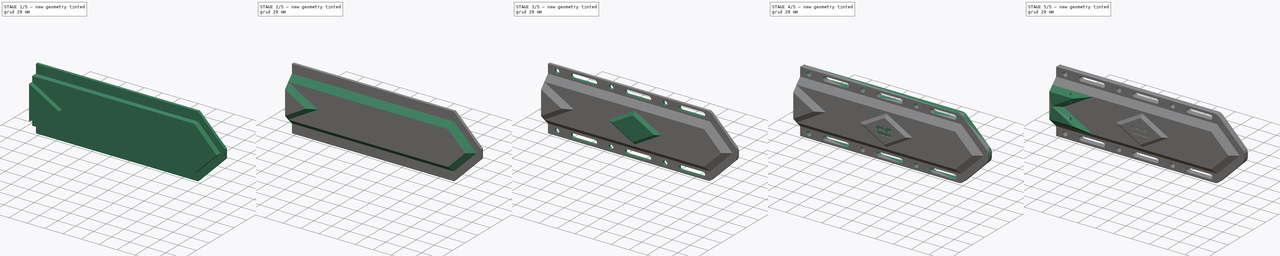
[diagram: build sequence overview — one tinted view per stage of 5, left to right]
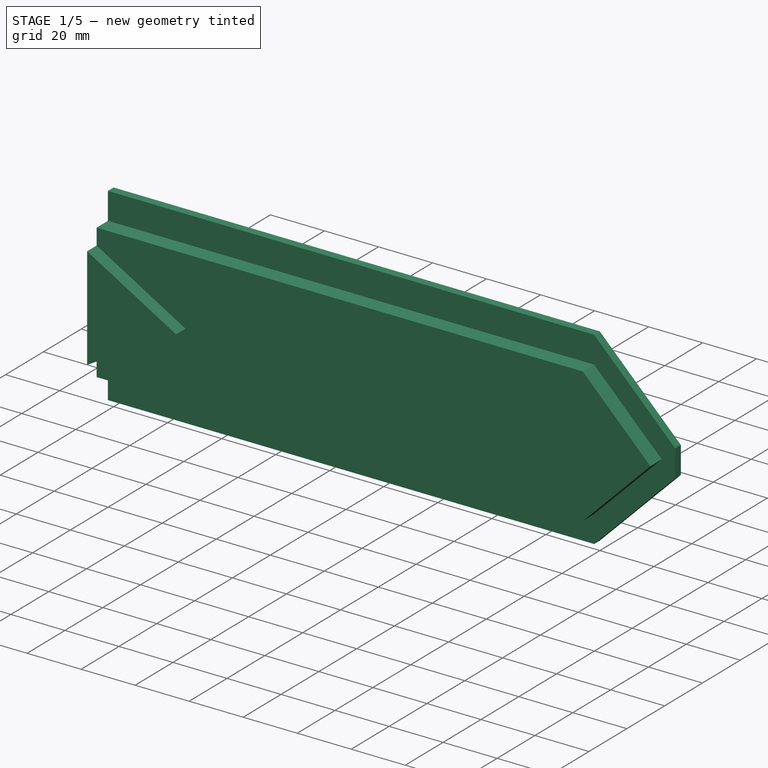
[diagram: stage 1 of 5 — iso view after this stage's code; geometry added in this stage tinted green]
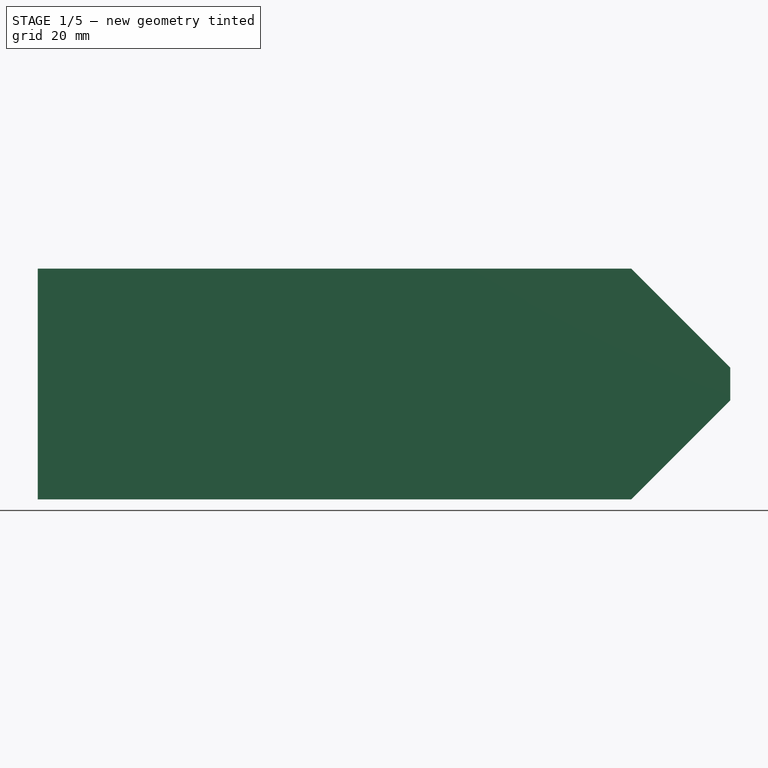
[diagram: stage 1 of 5 — front view after this stage's code; geometry added in this stage tinted green]
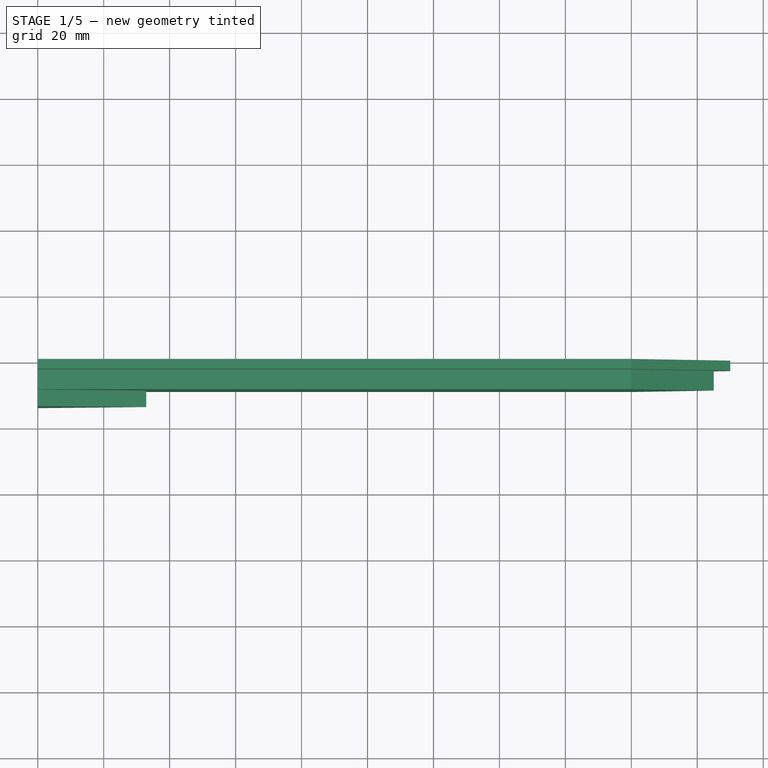
[diagram: stage 1 of 5 — top view after this stage's code; geometry added in this stage tinted green]
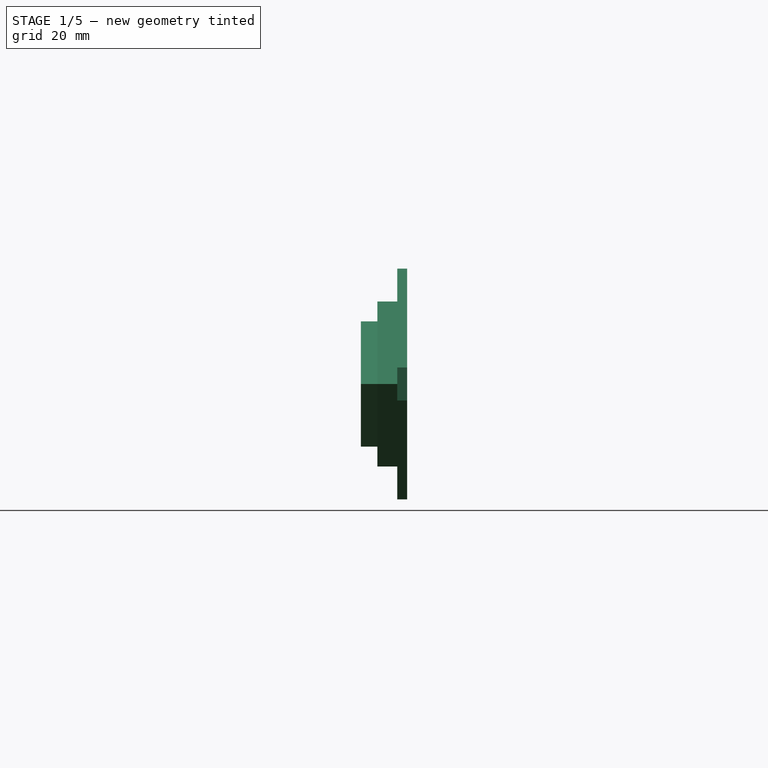
[diagram: stage 1 of 5 — right view after this stage's code; geometry added in this stage tinted green]
FCSTD DOCUMENT  (FreeCAD 1.0R39109 (Git))
Label: Рома кинжал
License: All rights reserved
LicenseURL: https://en.wikipedia.org/wiki/All_rights_reserved
objects: Sketcher::SketchObject×10, PartDesign::Pocket×7, PartDesign::Pad×5, PartDesign::Chamfer×4, Part::Part2DObjectPython×2, PartDesign::Fillet×1, PartDesign::Mirrored×1, PartDesign::Plane×1, PartDesign::Body×1
note: 77 computed .brp shape members not serialized (recipe doc carries the construction recipe); baked Part::Feature solids carry a one-line shape summary decoded from their .brp

FEATURE [Sketcher::SketchObject] Sketch
  ArcFitTolerance = 1e-06
  AttachmentSupport = -> [XZ_Plane]
  FullyConstrained = true
  MakeInternals = false
  MapMode = 5
  Placement = pos=(0,0,0) rot=(1,0,0;1.5708rad)
  sketch-geometry (6):
    g0: LineSegment StartX=0 StartY=35 StartZ=0 EndX=0 EndY=-35 EndZ=0
    g1: LineSegment StartX=0 StartY=-35 StartZ=0 EndX=180 EndY=-35 EndZ=0
    g2: LineSegment StartX=210 StartY=-5 StartZ=0 EndX=210 EndY=5 EndZ=0
    g3: LineSegment StartX=180 StartY=35 StartZ=0 EndX=0 EndY=35 EndZ=0
    g4: LineSegment StartX=180 StartY=35 StartZ=0 EndX=210 EndY=5 EndZ=0
    g5: LineSegment StartX=210 StartY=-5 StartZ=0 EndX=180 EndY=-35 EndZ=0
  constraints (17):
    c: Coincident(g0,g1)
    c: Coincident(g3,g0)
    c: Vertical(g2)
    c: Horizontal(g1)
    c: Horizontal(g3)
    c: Distance(g1,g3) = 70
    c: PointOnObject(g0,g-2)
    c: Symmetric(g0,g0,g-1)
    c: Symmetric(g4,g5,g-1)
    c: Symmetric(g4,g5,g-1)
    c: Angle(g4,g-1) = 0.785398
    c: Distance(g4,g5) = 10
    c: Coincident(g3,g4)
    c: Coincident(g2,g4)
    c: PointOnObject(g2,g5)
    c: PointOnObject(g1,g5)
    c: DistanceX(g3,g3) = 180
FEATURE [PartDesign::Pad] Pad  label="заг.контур"
  Direction = (0,-1,2e-16)
  Length = 3
  Length2 = 10
  Placement = pos=(0,0,0) rot=(1,0,0;1.5708rad)
  Profile = -> Sketch
  ReferenceAxis = -> Sketch [N_Axis]
  Refine = true
  Suppressed = false
  Type = 0
FEATURE [Sketcher::SketchObject] Sketch001
  ArcFitTolerance = 1e-06
  AttachmentSupport = -> [Pad]
  FullyConstrained = false
  MakeInternals = false
  MapMode = 5
  Placement = pos=(0,0,0) rot=(-1,0,0;1.5708rad)
  sketch-geometry (6):
    g0: LineSegment StartX=0 StartY=20 StartZ=0 EndX=0 EndY=-20 EndZ=0
    g1: LineSegment StartX=0 StartY=-20 StartZ=0 EndX=185.029 EndY=-20 EndZ=0
    g2: LineSegment StartX=200 StartY=-5.02867 StartZ=0 EndX=200 EndY=5.02867 EndZ=0
    g3: LineSegment StartX=185.029 StartY=20 StartZ=0 EndX=0 EndY=20 EndZ=0
    g4: LineSegment StartX=200 StartY=5.02867 StartZ=0 EndX=185.029 EndY=20 EndZ=0
    g5: LineSegment StartX=200 StartY=-5.02867 StartZ=0 EndX=185.029 EndY=-20 EndZ=0
  constraints (15):
    c: Coincident(g0,g1)
    c: Coincident(g3,g0)
    c: Vertical(g2)
    c: Horizontal(g1)
    c: Horizontal(g3)
    c: Distance(g1,g3) = 40
    c: PointOnObject(g0,g-2)
    c: Symmetric(g0,g0,g-1)
    c: Angle(g4,g-1) = 0.785399
    c: Symmetric(g4,g5,g-1)
    c: Angle(g-1,g5) = 0.785398
    c: Coincident(g3,g4)
    c: Coincident(g2,g4)
    c: PointOnObject(g2,g5)
    c: Coincident(g1,g5)
FEATURE [PartDesign::Pocket] Pocket  label="заглиблення для леза"
  BaseFeature = -> Pad
  Direction = (0,-1,-2e-16)
  Length = 1.5
  Length2 = 5
  Placement = pos=(0,0,0) rot=(1,0,0;1.5708rad)
  Profile = -> Sketch001
  ReferenceAxis = -> Sketch001 [N_Axis]
  Refine = true
  Suppressed = false
  Type = 0
FEATURE [Sketcher::SketchObject] Sketch002
  ArcFitTolerance = 1e-06
  AttachmentSupport = -> [Pocket]
  FullyConstrained = false
  MakeInternals = false
  MapMode = 5
  Placement = pos=(0,-3,0) rot=(1,0,0;1.5708rad)
  sketch-geometry (5):
    g0: LineSegment StartX=0 StartY=25 StartZ=0 EndX=0 EndY=-25 EndZ=0
    g1: LineSegment StartX=0 StartY=-25 StartZ=0 EndX=180 EndY=-25 EndZ=0
    g2: LineSegment StartX=180 StartY=25 StartZ=0 EndX=0 EndY=25 EndZ=0
    g3: LineSegment StartX=180 StartY=25 StartZ=0 EndX=205 EndY=0 EndZ=0
    g4: LineSegment StartX=205 StartY=0 StartZ=0 EndX=180 EndY=-25 EndZ=0
  constraints (13):
    c: Coincident(g0,g1)
    c: Coincident(g2,g0)
    c: Horizontal(g1)
    c: Horizontal(g2)
    c: PointOnObject(g0,g-2)
    c: Symmetric(g0,g0,g-1)
    c: Angle(g-1,g3) = -0.785398
    c: Angle(g4,g-1) = 5.49779
    c: DistanceY(g0,g0) = 50
    c: PointOnObject(g4,g-1)
    c: PointOnObject(g3,g-1)
    c: Coincident(g2,g3)
    c: Coincident(g1,g4)
FEATURE [PartDesign::Pad] Pad001  label="виступ для леза"
  BaseFeature = -> Pocket
  Direction = (0,-1,2e-16)
  Length = 6
  Length2 = 10
  Placement = pos=(0,0,0) rot=(1,0,0;1.5708rad)
  Profile = -> Sketch002
  ReferenceAxis = -> Sketch002 [N_Axis]
  Refine = true
  Suppressed = false
  Type = 0
FEATURE [Sketcher::SketchObject] Sketch003
  ArcFitTolerance = 1e-06
  AttachmentSupport = -> [Pad001]
  FullyConstrained = true
  MakeInternals = false
  MapMode = 5
  Placement = pos=(0,-9,2e-15) rot=(1,0,0;1.5708rad)
  sketch-geometry (3):
    g0: LineSegment StartX=0 StartY=19 StartZ=0 EndX=0 EndY=-19 EndZ=0
    g1: LineSegment StartX=0 StartY=-19 StartZ=0 EndX=32.909 EndY=0 EndZ=0
    g2: LineSegment StartX=32.909 StartY=0 StartZ=0 EndX=0 EndY=19 EndZ=0
  constraints (8):
    c: Coincident(g0,g1)
    c: Coincident(g2,g0)
    c: PointOnObject(g0,g-2)
    c: Symmetric(g0,g0,g-1)
    c: DistanceY(g0,g0) = 38
    c: PointOnObject(g1,g-1)
    c: Coincident(g2,g1)
    c: Angle(g-1,g1) = 0.523599
FEATURE [PartDesign::Pad] Pad002  label="горб"
  BaseFeature = -> Pad001
  Direction = (0,-1,2e-16)
  Length = 5
  Length2 = 10
  Placement = pos=(0,0,0) rot=(1,0,0;1.5708rad)
  Profile = -> Sketch003
  ReferenceAxis = -> Sketch003 [N_Axis]
  Refine = true
  Suppressed = false
  Type = 0
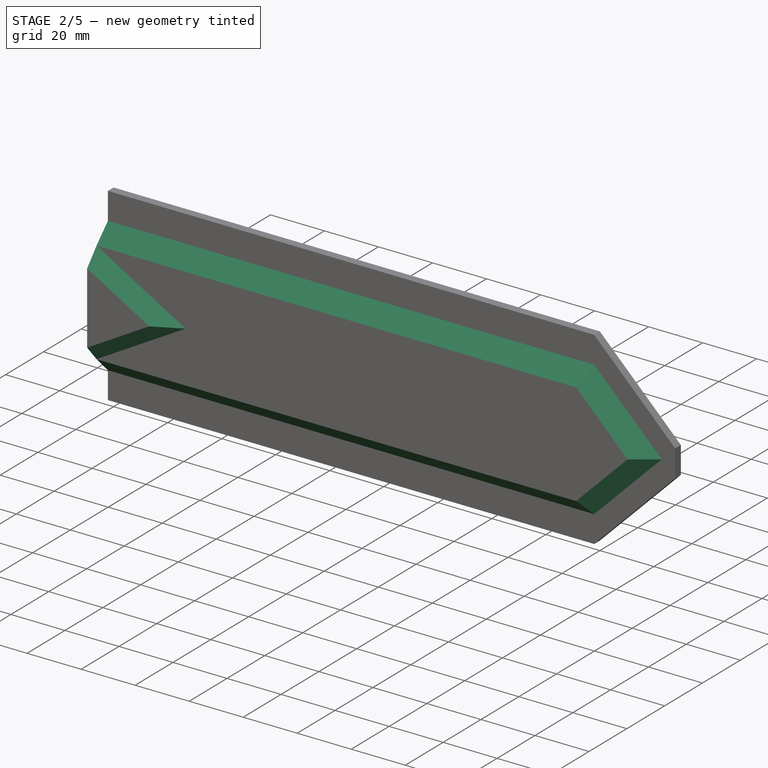
[diagram: stage 2 of 5 — iso view after this stage's code; geometry added in this stage tinted green]
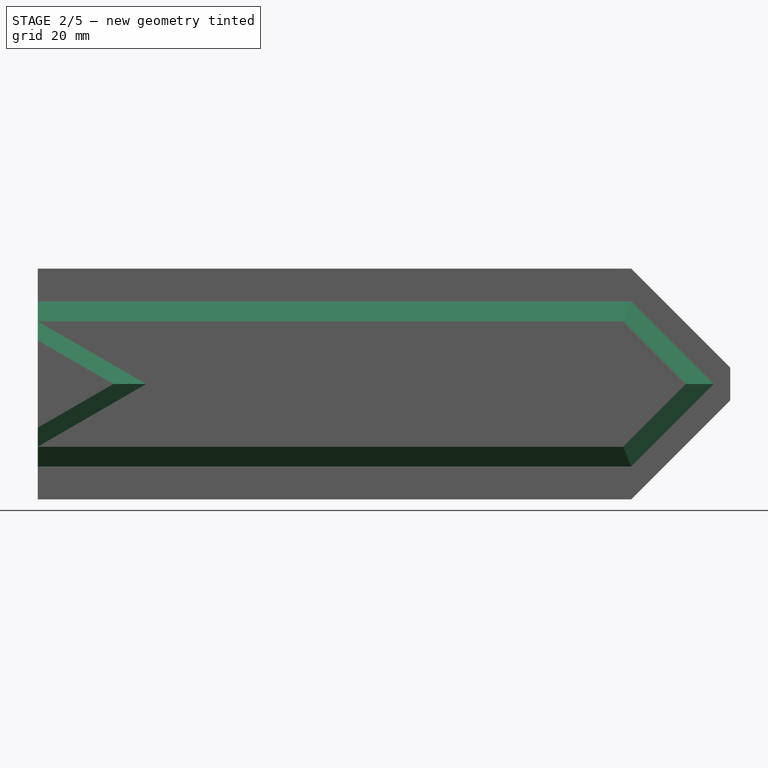
[diagram: stage 2 of 5 — front view after this stage's code; geometry added in this stage tinted green]
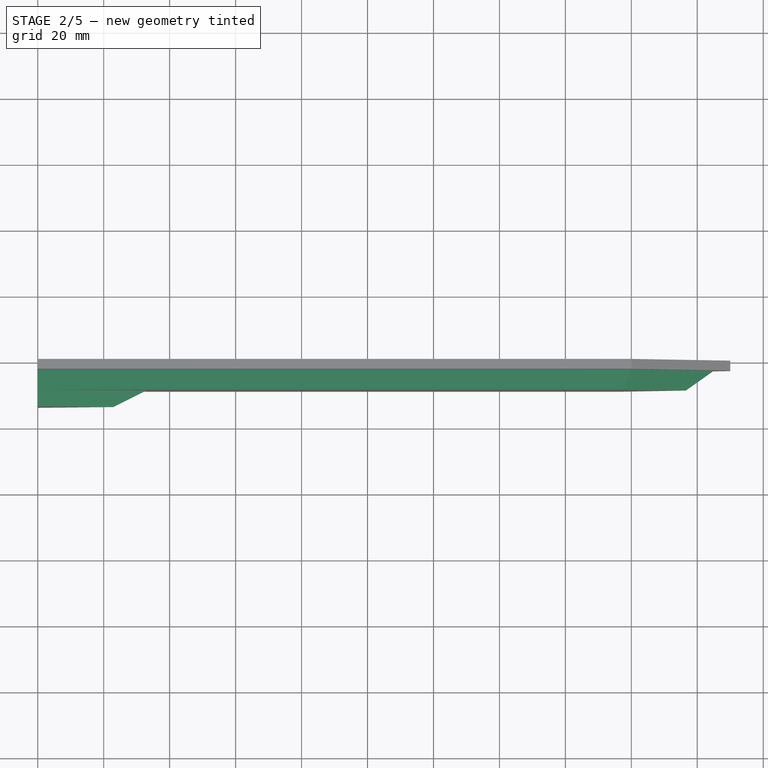
[diagram: stage 2 of 5 — top view after this stage's code; geometry added in this stage tinted green]
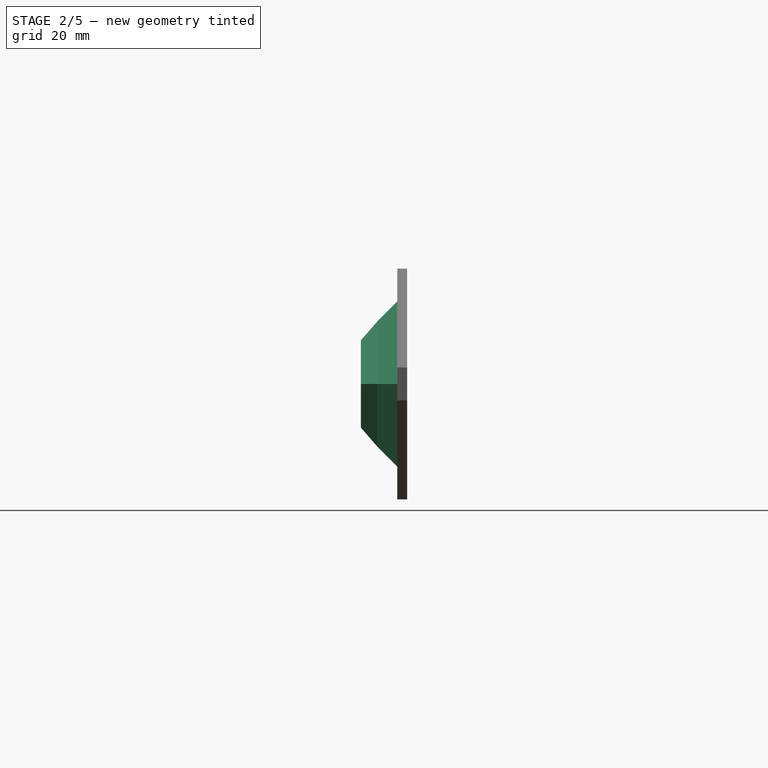
[diagram: stage 2 of 5 — right view after this stage's code; geometry added in this stage tinted green]
FEATURE [Sketcher::SketchObject] Sketch004
  ArcFitTolerance = 1e-06
  AttachmentSupport = -> [Pad002]
  FullyConstrained = true
  MakeInternals = false
  MapMode = 5
  Placement = pos=(0,0,0) rot=(0.707107,0,-0.707107;3.14159rad)
  sketch-geometry (4):
    g0: LineSegment StartX=-10 StartY=8 StartZ=0 EndX=-10 EndY=5 EndZ=0
    g1: LineSegment StartX=-10 StartY=5 StartZ=0 EndX=10 EndY=5 EndZ=0
    g2: LineSegment StartX=10 StartY=5 StartZ=0 EndX=10 EndY=8 EndZ=0
    g3: LineSegment StartX=10 StartY=8 StartZ=0 EndX=-10 EndY=8 EndZ=0
  constraints (11):
    c: Coincident(g0,g1)
    c: Coincident(g1,g2)
    c: Coincident(g2,g3)
    c: Coincident(g3,g0)
    c: Vertical(g0)
    c: Vertical(g2)
    c: Horizontal(g3)
    c: Distance(g0,g2) = 20
    c: Distance(g1,g3) = 3
    c: Symmetric(g0,g1,g-2)
    c: Distance(g1,g-1) = 5
FEATURE [PartDesign::Pocket] Pocket001  label="загл для магнита"
  BaseFeature = -> Pad002
  Direction = (1,0,2e-16)
  Length = 4
  Length2 = 5
  Placement = pos=(0,0,0) rot=(1,0,0;1.5708rad)
  Profile = -> Sketch004
  ReferenceAxis = -> Sketch004 [N_Axis]
  Refine = true
  Suppressed = false
  Type = 0
FEATURE [PartDesign::Chamfer] Chamfer
  Angle = 45
  Base = -> Pocket001 [Edge50,Edge56,Edge55,Edge54]
  BaseFeature = -> Pocket001
  ChamferType = 0
  FlipDirection = false
  Placement = pos=(0,0,0) rot=(1,0,0;1.5708rad)
  Refine = true
  Size = 5.99
  Size2 = 1
  SupportTransform = false
  Suppressed = false
  UseAllEdges = false
FEATURE [PartDesign::Chamfer] Chamfer001
  Angle = 45
  Base = -> Chamfer [Edge44,Edge54]
  BaseFeature = -> Chamfer
  ChamferType = 0
  FlipDirection = false
  Placement = pos=(0,0,0) rot=(1,0,0;1.5708rad)
  Refine = true
  Size = 4.99
  Size2 = 1
  SupportTransform = false
  Suppressed = false
  UseAllEdges = false
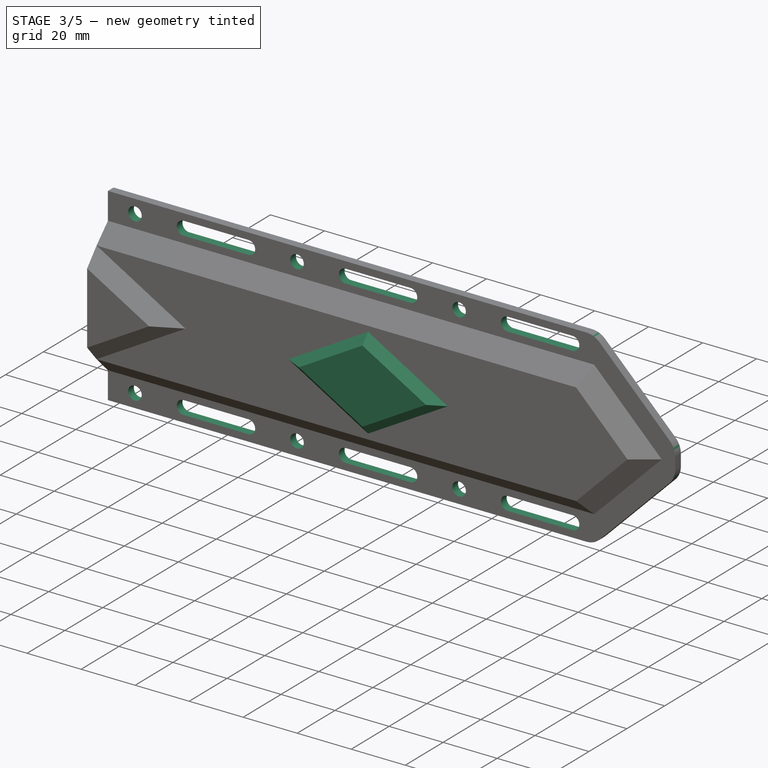
[diagram: stage 3 of 5 — iso view after this stage's code; geometry added in this stage tinted green]
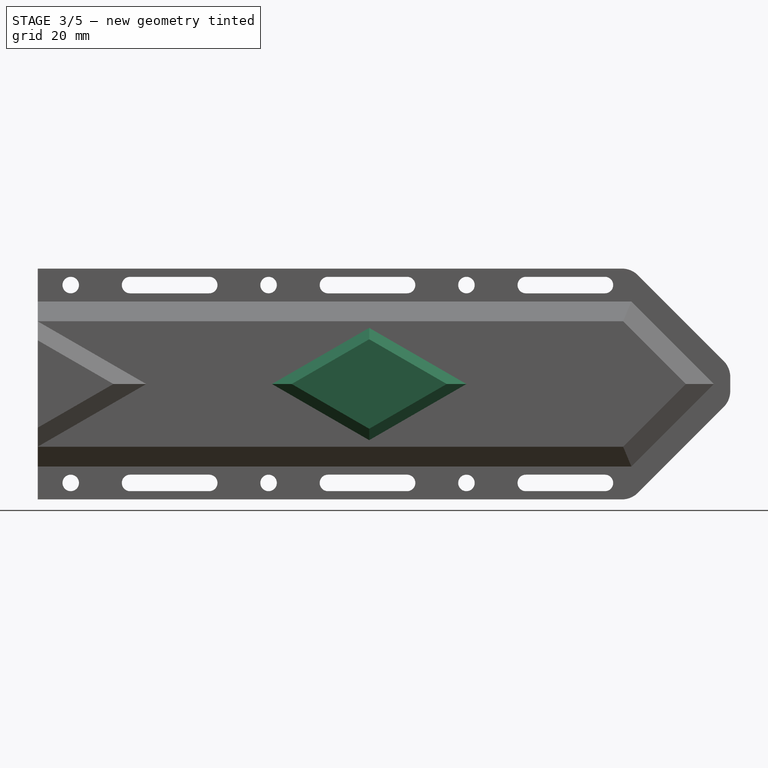
[diagram: stage 3 of 5 — front view after this stage's code; geometry added in this stage tinted green]
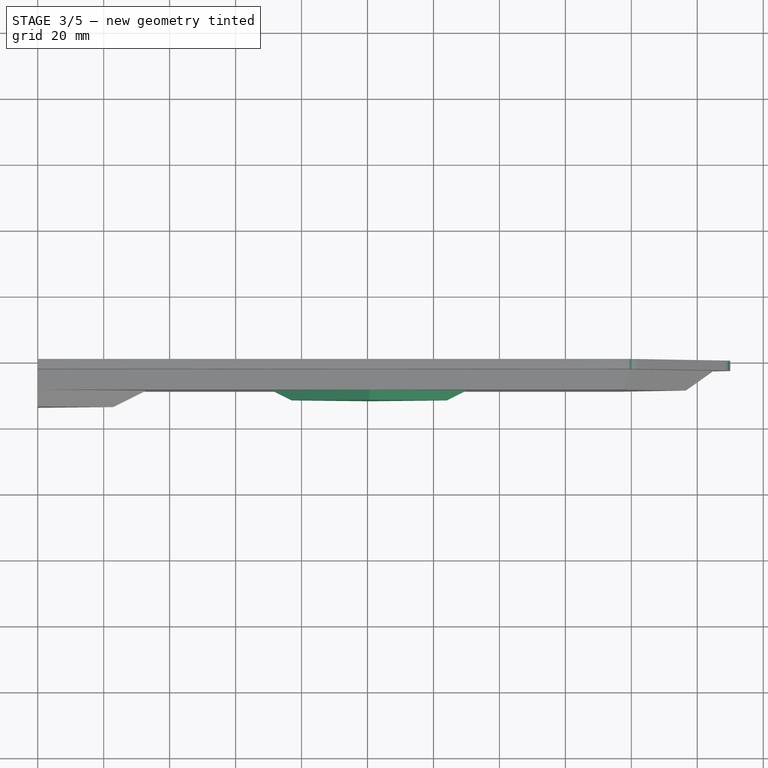
[diagram: stage 3 of 5 — top view after this stage's code; geometry added in this stage tinted green]
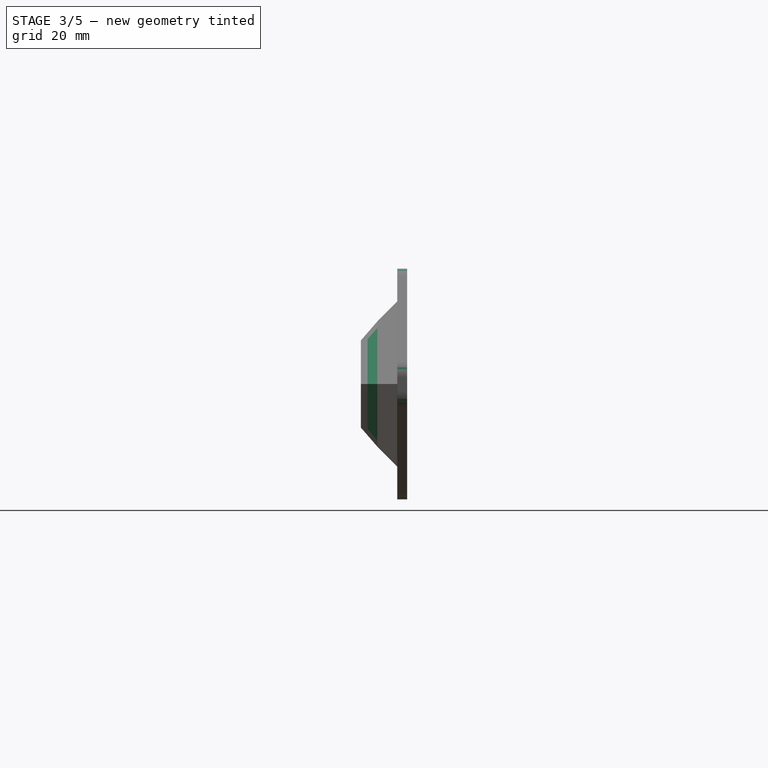
[diagram: stage 3 of 5 — right view after this stage's code; geometry added in this stage tinted green]
FEATURE [Sketcher::SketchObject] Sketch005
  ArcFitTolerance = 1e-06
  AttachmentSupport = -> [Chamfer001]
  FullyConstrained = false
  MakeInternals = false
  MapMode = 5
  Placement = pos=(0,-3,0) rot=(1,0,0;1.5708rad)
  sketch-geometry (30):
    g0: Circle CenterX=130 CenterY=30 CenterZ=0 NormalX=0 NormalY=0 NormalZ=1 AngleXU=0 Radius=2.5
    g1: ArcOfCircle CenterX=148 CenterY=30 CenterZ=0 NormalX=0 NormalY=0 NormalZ=1 AngleXU=0 Radius=2.5 StartAngle=1.5708 EndAngle=4.71239
    g2: ArcOfCircle CenterX=172 CenterY=30 CenterZ=0 NormalX=0 NormalY=0 NormalZ=1 AngleXU=0 Radius=2.5 StartAngle=4.71239 EndAngle=7.85398
    g3: LineSegment StartX=148 StartY=32.5 StartZ=0 EndX=172 EndY=32.5 EndZ=0
    g4: LineSegment StartX=148 StartY=27.5 StartZ=0 EndX=172 EndY=27.5 EndZ=0
    g5: Circle CenterX=10 CenterY=30 CenterZ=0 NormalX=0 NormalY=0 NormalZ=1 AngleXU=0 Radius=2.5
    g6: ArcOfCircle CenterX=28 CenterY=30 CenterZ=0 NormalX=0 NormalY=0 NormalZ=1 AngleXU=0 Radius=2.5 StartAngle=1.5708 EndAngle=4.71239
    g7: ArcOfCircle CenterX=52 CenterY=30 CenterZ=0 NormalX=0 NormalY=0 NormalZ=1 AngleXU=0 Radius=2.5 StartAngle=4.71239 EndAngle=7.85398
    g8: LineSegment StartX=28 StartY=32.5 StartZ=0 EndX=52 EndY=32.5 EndZ=0
    g9: LineSegment StartX=28 StartY=27.5 StartZ=0 EndX=52 EndY=27.5 EndZ=0
    g10: Circle CenterX=70 CenterY=30 CenterZ=0 NormalX=0 NormalY=0 NormalZ=1 AngleXU=0 Radius=2.5
    g11: ArcOfCircle CenterX=88 CenterY=30 CenterZ=0 NormalX=0 NormalY=0 NormalZ=1 AngleXU=0 Radius=2.5 StartAngle=1.5708 EndAngle=4.71239
    g12: ArcOfCircle CenterX=112 CenterY=30 CenterZ=0 NormalX=0 NormalY=0 NormalZ=1 AngleXU=0 Radius=2.5 StartAngle=4.71239 EndAngle=7.85398
    g13: LineSegment StartX=88 StartY=32.5 StartZ=0 EndX=112 EndY=32.5 EndZ=0
    g14: LineSegment StartX=88 StartY=27.5 StartZ=0 EndX=112 EndY=27.5 EndZ=0
    g15: Circle CenterX=130 CenterY=-30 CenterZ=0 NormalX=0 NormalY=0 NormalZ=1 AngleXU=0 Radius=2.5
    g16: ArcOfCircle CenterX=148 CenterY=-30 CenterZ=0 NormalX=0 NormalY=0 NormalZ=1 AngleXU=0 Radius=2.5 StartAngle=1.5708 EndAngle=4.71239
    g17: ArcOfCircle CenterX=172 CenterY=-30 CenterZ=0 NormalX=0 NormalY=0 NormalZ=1 AngleXU=0 Radius=2.5 StartAngle=4.71239 EndAngle=7.85398
    g18: LineSegment StartX=148 StartY=-32.5 StartZ=0 EndX=172 EndY=-32.5 EndZ=0
    g19: LineSegment StartX=148 StartY=-27.5 StartZ=0 EndX=172 EndY=-27.5 EndZ=0
    g20: Circle CenterX=10 CenterY=-30 CenterZ=0 NormalX=0 NormalY=0 NormalZ=1 AngleXU=0 Radius=2.5
    g21: ArcOfCircle CenterX=28 CenterY=-30 CenterZ=0 NormalX=0 NormalY=0 NormalZ=1 AngleXU=0 Radius=2.5 StartAngle=1.5708 EndAngle=4.71239
    g22: ArcOfCircle CenterX=52 CenterY=-30 CenterZ=0 NormalX=0 NormalY=0 NormalZ=1 AngleXU=0 Radius=2.5 StartAngle=4.71239 EndAngle=7.85398
    g23: LineSegment StartX=28 StartY=-32.5 StartZ=0 EndX=52 EndY=-32.5 EndZ=0
    g24: LineSegment StartX=28 StartY=-27.5 StartZ=0 EndX=52 EndY=-27.5 EndZ=0
    g25: Circle CenterX=70 CenterY=-30 CenterZ=0 NormalX=0 NormalY=0 NormalZ=1 AngleXU=0 Radius=2.5
    g26: ArcOfCircle CenterX=88 CenterY=-30 CenterZ=0 NormalX=0 NormalY=0 NormalZ=1 AngleXU=0 Radius=2.5 StartAngle=1.5708 EndAngle=4.71239
    g27: ArcOfCircle CenterX=112 CenterY=-30 CenterZ=0 NormalX=0 NormalY=0 NormalZ=1 AngleXU=0 Radius=2.5 StartAngle=4.71239 EndAngle=7.85398
    g28: LineSegment StartX=88 StartY=-32.5 StartZ=0 EndX=112 EndY=-32.5 EndZ=0
    g29: LineSegment StartX=88 StartY=-27.5 StartZ=0 EndX=112 EndY=-27.5 EndZ=0
  constraints (60):
    c: Tangent(g1,g3) = 1.5708
    c: Tangent(g1,g4) = -1.5708
    c: Tangent(g2,g3) = 1.5708
    c: Tangent(g2,g4) = -1.5708
    c: Equal(g1,g2)
    c: Horizontal(g4)
    c: Distance(g1,g2) = 24
    c: Radius(g1) = 2.5
    c: Diameter(g5) = 5
    c: Tangent(g6,g8) = 1.5708
    c: Tangent(g6,g9) = -1.5708
    c: Tangent(g7,g8) = 1.5708
    c: Tangent(g7,g9) = -1.5708
    c: Equal(g6,g7)
    c: Horizontal(g9)
    c: Distance(g6,g7) = 24
    c: Radius(g6) = 2.5
    c: Tangent(g11,g13) = 1.5708
    c: Tangent(g11,g14) = -1.5708
    c: Tangent(g12,g13) = 1.5708
    c: Tangent(g12,g14) = -1.5708
    c: Equal(g11,g12)
    c: Horizontal(g14)
    c: Distance(g11,g12) = 24
    c: Radius(g11) = 2.5
    c: Distance(g5,g-2) = 10
    c: DistanceX(g5,g6) = 18
    c: DistanceX(g7,g10) = 18
    c: DistanceX(g10,g11) = 18
    c: DistanceX(g12,g0) = 18
    c: DistanceX(g0,g1) = 18
    c: Equal(g5,g10)
    c: Equal(g10,g0)
    c: Tangent(g16,g18) = -1.5708
    c: Tangent(g16,g19) = 1.5708
    c: Tangent(g17,g18) = -1.5708
    c: Tangent(g17,g19) = 1.5708
    c: Equal(g16,g17)
    c: Horizontal(g19)
    c: Distance(g16,g17) = 24
    c: Radius(g16) = 2.5
    c: Diameter(g20) = 5
    c: Tangent(g21,g23) = -1.5708
    c: Tangent(g21,g24) = 1.5708
    c: Tangent(g22,g23) = -1.5708
    c: Tangent(g22,g24) = 1.5708
    c: Equal(g21,g22)
    c: Horizontal(g24)
    c: Distance(g21,g22) = 24
    c: Radius(g21) = 2.5
    c: Tangent(g26,g28) = -1.5708
    c: Tangent(g26,g29) = 1.5708
    c: Tangent(g27,g28) = -1.5708
    c: Tangent(g27,g29) = 1.5708
    c: Equal(g26,g27)
    c: Horizontal(g29)
    c: Distance(g26,g27) = 24
    c: Radius(g26) = 2.5
    c: Equal(g20,g25)
    c: Equal(g25,g15)
FEATURE [PartDesign::Pocket] Pocket002  label="бічні кріплення"
  BaseFeature = -> Chamfer001
  Direction = (0,1,-2e-16)
  Length = 2
  Length2 = 5
  Offset = 2
  Placement = pos=(0,0,0) rot=(1,0,0;1.5708rad)
  Profile = -> Sketch005
  ReferenceAxis = -> Sketch005 [N_Axis]
  Refine = true
  Suppressed = false
  Type = 1
FEATURE [Sketcher::SketchObject] Sketch006
  ArcFitTolerance = 1e-06
  AttachmentSupport = -> [Pocket002]
  FullyConstrained = false
  MakeInternals = false
  MapMode = 5
  Placement = pos=(0,-9,2e-15) rot=(1,0,0;1.5708rad)
  sketch-geometry (5):
    g0: LineSegment StartX=100.516 StartY=17.0227 StartZ=0 EndX=71.0316 EndY=-3.6e-15 EndZ=0
    g1: LineSegment StartX=71.0316 StartY=-3.6e-15 StartZ=0 EndX=100.516 EndY=-17.0227 EndZ=0
    g2: Circle [constr] CenterX=90.6877 CenterY=-2e-16 CenterZ=0 NormalX=0 NormalY=0 NormalZ=1 AngleXU=0 Radius=19.6561
    g3: LineSegment StartX=100.516 StartY=17.0227 StartZ=0 EndX=130 EndY=3.6e-15 EndZ=0
    g4: LineSegment StartX=130 StartY=3.6e-15 StartZ=0 EndX=100.516 EndY=-17.0227 EndZ=0
  constraints (12):
    c: Coincident(g0,g1)
    c: Equal(g0,g1)
    c: PointOnObject(g0,g2)
    c: PointOnObject(g1,g2)
    c: PointOnObject(g0,g2)
    c: Coincident(g3,g4)
    c: Equal(g3,g4)
    c: Coincident(g3,g0)
    c: Coincident(g4,g1)
    c: Symmetric(g0,g1,g-1)
    c: Angle(g-1,g4) = 0.523599
    c: Angle(g1,g-1) = 0.523599
FEATURE [PartDesign::Pad] Pad003
  BaseFeature = -> Pocket002
  Direction = (0,-1,2e-16)
  Length = 3
  Length2 = 10
  Placement = pos=(0,0,0) rot=(1,0,0;1.5708rad)
  Profile = -> Sketch006
  ReferenceAxis = -> Sketch006 [N_Axis]
  Refine = true
  Suppressed = false
  Type = 0
FEATURE [PartDesign::Chamfer] Chamfer002
  Angle = 45
  Base = -> Pad003 [Edge150,Edge148,Edge153,Edge152]
  BaseFeature = -> Pad003
  ChamferType = 0
  FlipDirection = false
  Placement = pos=(0,0,0) rot=(1,0,0;1.5708rad)
  Refine = true
  Size = 2.99
  Size2 = 1
  SupportTransform = false
  Suppressed = false
  UseAllEdges = false
FEATURE [PartDesign::Fillet] Fillet
  Base = -> Chamfer002 [Edge163,Edge164,Edge152,Edge104]
  BaseFeature = -> Chamfer002
  Placement = pos=(0,0,0) rot=(1,0,0;1.5708rad)
  Radius = 7
  Refine = true
  SupportTransform = false
  Suppressed = false
  UseAllEdges = false
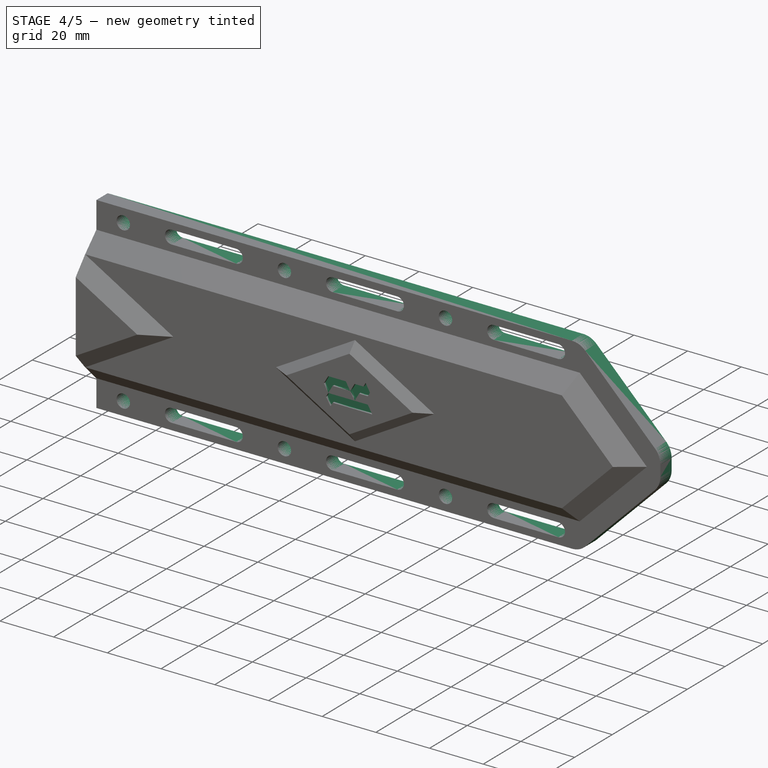
[diagram: stage 4 of 5 — iso view after this stage's code; geometry added in this stage tinted green]
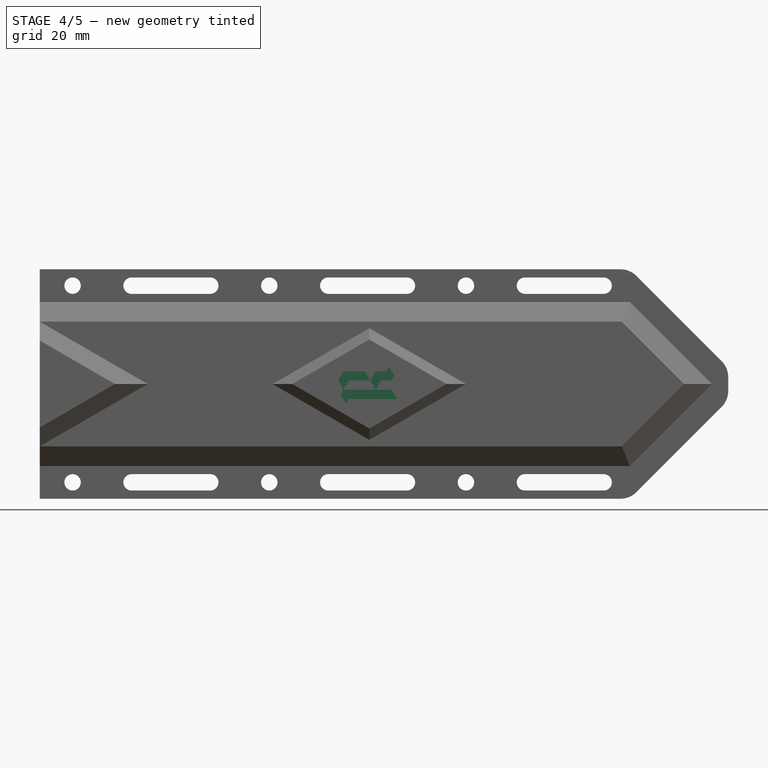
[diagram: stage 4 of 5 — front view after this stage's code; geometry added in this stage tinted green]
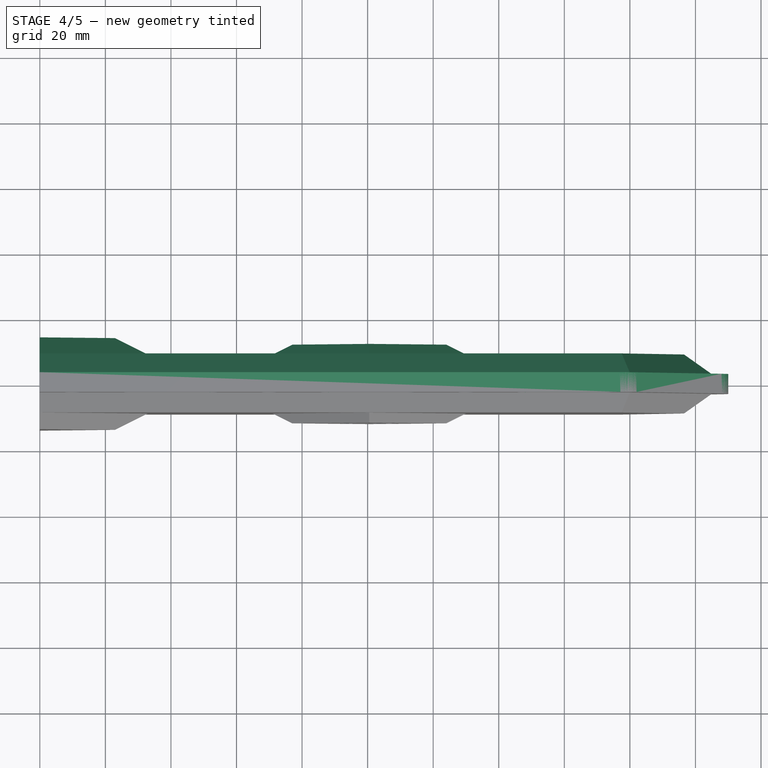
[diagram: stage 4 of 5 — top view after this stage's code; geometry added in this stage tinted green]
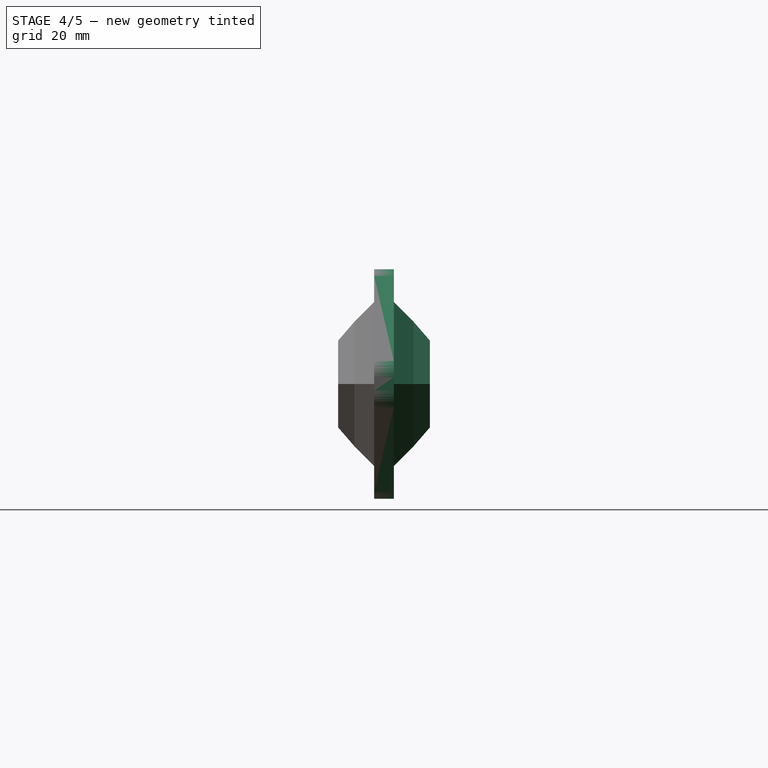
[diagram: stage 4 of 5 — right view after this stage's code; geometry added in this stage tinted green]
FEATURE [Part::Part2DObjectPython] ShapeString  # Draft 2D object (typed FeaturePython)
  FontFile = <userpath>/Desktop/DreiFraktur.ttf
  Fuse = false
  Justification = 6
  JustificationReference = 0
  KeepLeftMargin = false
  MakeFace = true
  ObliqueAngle = 0
  Placement = pos=(109,-12,-6) rot=(0.57735,-0.57735,0.57735;2.0944rad)
  ScaleToSize = true
  Size = 18
  String = R
  Tracking = 0
FEATURE [PartDesign::Mirrored] Mirrored
  BaseFeature = -> Fillet
  MirrorPlane = -> XZ_Plane
  Placement = pos=(0,0,0) rot=(1,0,0;1.5708rad)
  Refine = true
  Suppressed = false
  TransformMode = 1
FEATURE [Part::Part2DObjectPython] ShapeString001  # Draft 2D object (typed FeaturePython)
  FontFile = <userpath>/Desktop/DreiFraktur.ttf
  Fuse = false
  Justification = 6
  JustificationReference = 0
  KeepLeftMargin = false
  MakeFace = true
  ObliqueAngle = 0
  Placement = pos=(109,12,8) rot=(-0.57735,0.57735,0.57735;2.0944rad)
  ScaleToSize = true
  Size = 18
  String = M
  Tracking = 0
FEATURE [PartDesign::Pocket] Pocket003
  BaseFeature = -> Mirrored
  Direction = (0,1,0)
  Length = 0.8
  Length2 = 5
  Placement = pos=(0,0,0) rot=(1,0,0;1.5708rad)
  Profile = -> ShapeString
  ReferenceAxis = -> ShapeString [N_Axis]
  Refine = true
  Suppressed = false
  Type = 0
FEATURE [PartDesign::Pocket] Pocket004
  BaseFeature = -> Pocket003
  Direction = (0,-1,0)
  Length = 0.8
  Length2 = 5
  Placement = pos=(0,0,0) rot=(1,0,0;1.5708rad)
  Profile = -> ShapeString001
  ReferenceAxis = -> ShapeString001 [N_Axis]
  Refine = true
  Suppressed = false
  Type = 0
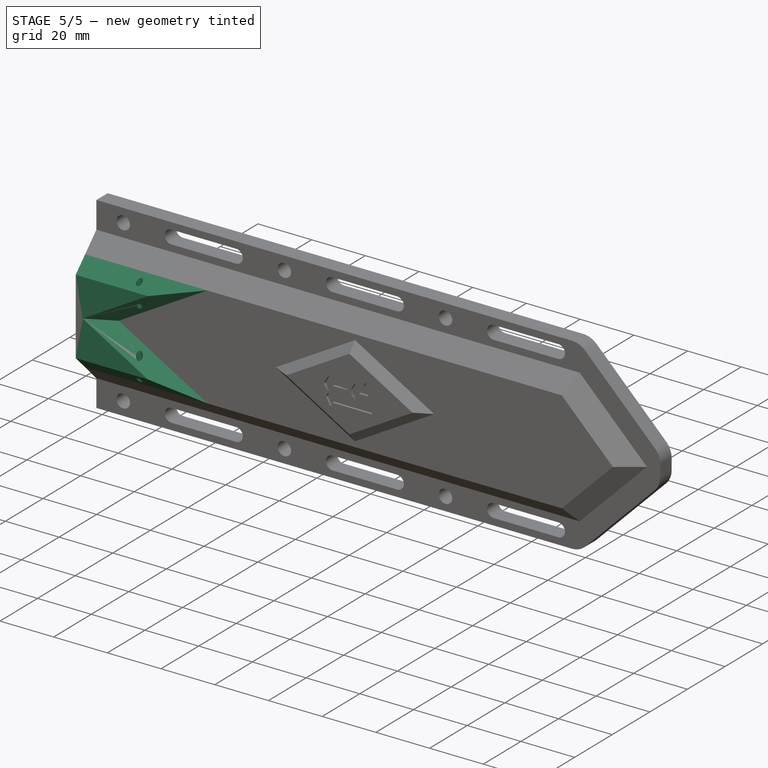
[diagram: stage 5 of 5 — iso view after this stage's code; geometry added in this stage tinted green]
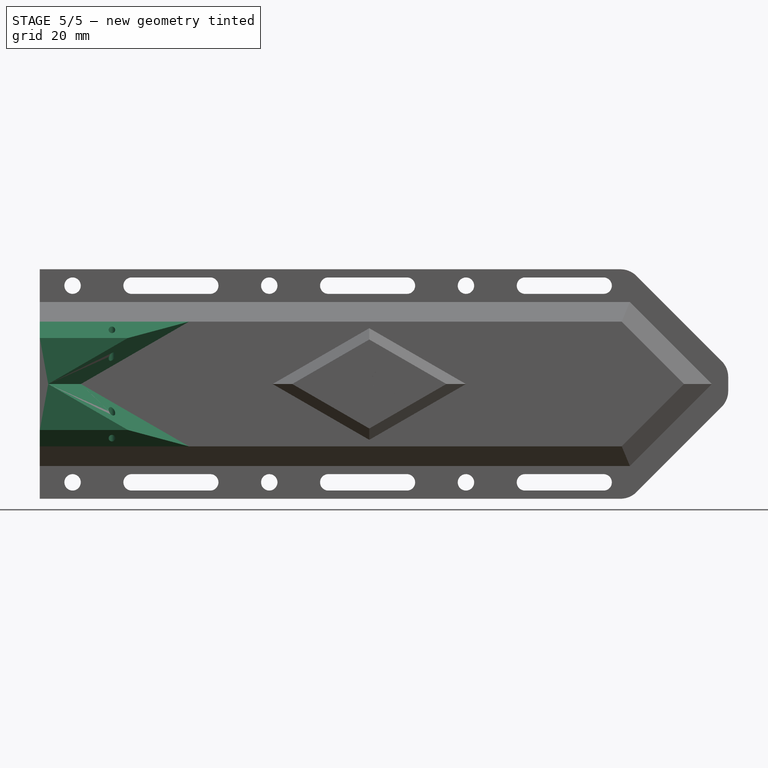
[diagram: stage 5 of 5 — front view after this stage's code; geometry added in this stage tinted green]
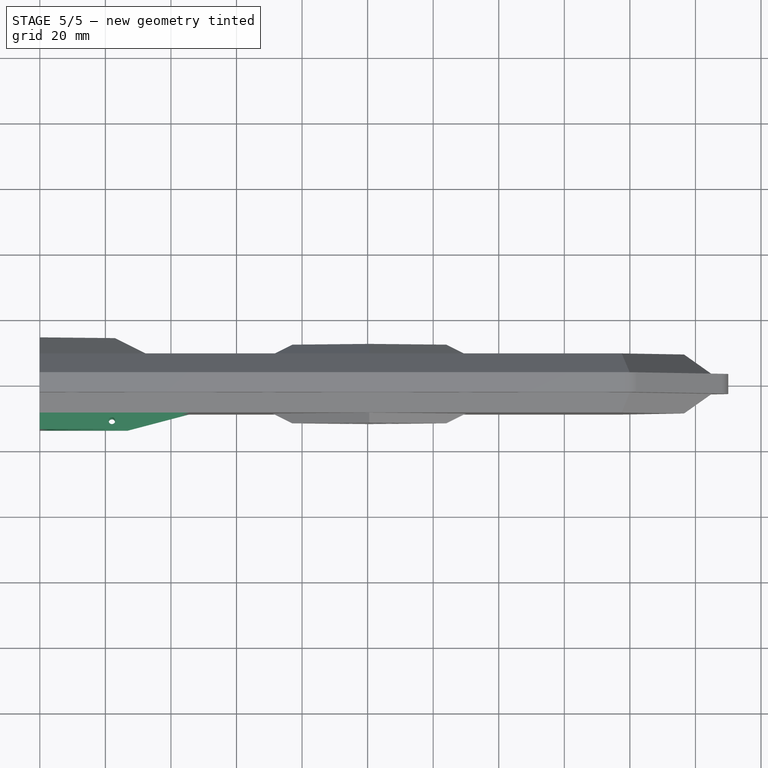
[diagram: stage 5 of 5 — top view after this stage's code; geometry added in this stage tinted green]
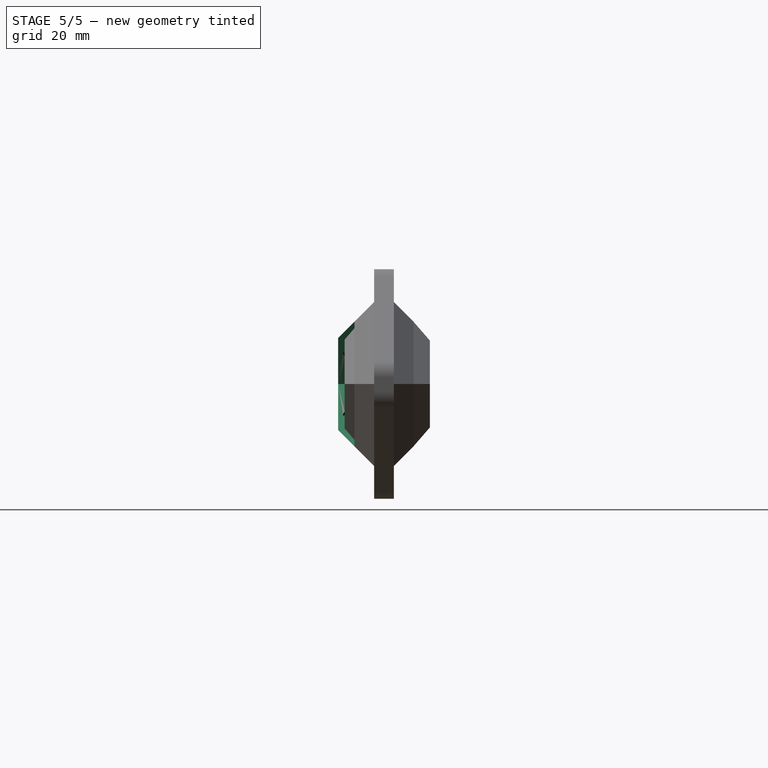
[diagram: stage 5 of 5 — right view after this stage's code; geometry added in this stage tinted green]
FEATURE [Sketcher::SketchObject] Sketch007
  ArcFitTolerance = 1e-06
  AttachmentSupport = -> [Pocket004]
  ExternalGeometry = -> [Pocket004]
  FullyConstrained = false
  MakeInternals = false
  MapMode = 5
  Placement = pos=(0,-14,0) rot=(1,0,0;1.5708rad)
  sketch-geometry (4):
    g0: LineSegment StartX=0 StartY=19.01 StartZ=0 EndX=0 EndY=-19.01 EndZ=0
    g1: LineSegment StartX=0 StartY=-19.01 StartZ=0 EndX=41.2628 EndY=-19.01 EndZ=0
    g2: LineSegment StartX=41.2628 StartY=-19.01 StartZ=0 EndX=41.2628 EndY=19.01 EndZ=0
    g3: LineSegment StartX=41.2628 StartY=19.01 StartZ=0 EndX=0 EndY=19.01 EndZ=0
  constraints (10):
    c: Coincident(g0,g1)
    c: Coincident(g1,g2)
    c: Coincident(g2,g3)
    c: Coincident(g3,g0)
    c: Vertical(g0)
    c: Vertical(g2)
    c: Horizontal(g1)
    c: Horizontal(g3)
    c: Coincident(g0,g-3)
    c: PointOnObject(g1,g-4)
FEATURE [PartDesign::Pocket] Pocket005
  BaseFeature = -> Pocket004
  Direction = (0,1,-2e-16)
  Length = 5
  Length2 = 5
  Placement = pos=(0,0,0) rot=(1,0,0;1.5708rad)
  Profile = -> Sketch007
  ReferenceAxis = -> Sketch007 [N_Axis]
  Refine = true
  Suppressed = false
  Type = 0
FEATURE [Sketcher::SketchObject] Sketch008
  ArcFitTolerance = 1e-06
  AttachmentSupport = -> [Pocket005]
  ExternalGeometry = -> [Pocket005]
  FullyConstrained = false
  MakeInternals = false
  MapMode = 5
  Placement = pos=(0,-9,5e-15) rot=(1,0,0;1.5708rad)
  sketch-geometry (5):
    g0: LineSegment StartX=0 StartY=19.01 StartZ=0 EndX=45.4704 EndY=19.01 EndZ=0
    g1: LineSegment StartX=45.4704 StartY=19.01 StartZ=0 EndX=12.5441 EndY=0 EndZ=0
    g2: LineSegment StartX=12.5441 StartY=0 StartZ=0 EndX=45.4704 EndY=-19.01 EndZ=0
    g3: LineSegment StartX=45.4704 StartY=-19.01 StartZ=0 EndX=-7.1e-15 EndY=-19.01 EndZ=0
    g4: LineSegment StartX=-7.1e-15 StartY=-19.01 StartZ=0 EndX=0 EndY=19.01 EndZ=0
  constraints (11):
    c: Coincident(g-3,g0)
    c: PointOnObject(g0,g-3)
    c: Coincident(g0,g1)
    c: PointOnObject(g1,g-1)
    c: Coincident(g1,g2)
    c: Coincident(g2,g3)
    c: Coincident(g3,g-4)
    c: Coincident(g3,g4)
    c: Coincident(g4,g0)
    c: Symmetric(g0,g2,g-1)
    c: Angle(g2,g3) = 0.523599
FEATURE [PartDesign::Pad] Pad004
  BaseFeature = -> Pocket005
  Direction = (0,-1,2e-16)
  Length = 5
  Length2 = 10
  Placement = pos=(0,0,0) rot=(1,0,0;1.5708rad)
  Profile = -> Sketch008
  ReferenceAxis = -> Sketch008 [N_Axis]
  Refine = true
  Suppressed = false
  Type = 0
FEATURE [PartDesign::Chamfer] Chamfer003
  Angle = 45
  Base = -> Pad004 [Edge167,Edge168,Edge169,Edge164]
  BaseFeature = -> Pad004
  ChamferType = 0
  FlipDirection = false
  Placement = pos=(0,0,0) rot=(1,0,0;1.5708rad)
  Refine = true
  Size = 4.99
  Size2 = 1
  SupportTransform = false
  Suppressed = false
  UseAllEdges = false
FEATURE [PartDesign::Plane] DatumPlane
  Length = 256.679
  ResizeMode = 0
  Width = 71.6795
FEATURE [Sketcher::SketchObject] Sketch010
  ArcFitTolerance = 1e-06
  AttachmentSupport = -> [DatumPlane]
  FullyConstrained = false
  MakeInternals = false
  MapMode = 5
  sketch-geometry (1):
    g0: Circle CenterX=22 CenterY=-11.5 CenterZ=0 NormalX=0 NormalY=0 NormalZ=1 AngleXU=0 Radius=1
  constraints (1):
    c: Diameter(g0) = 2
FEATURE [PartDesign::Pocket] Pocket006
  BaseFeature = -> Chamfer003
  Direction = (0,0,-1)
  Length = 5
  Length2 = 5
  Midplane = true
  Placement = pos=(0,0,0) rot=(1,0,0;1.5708rad)
  Profile = -> Sketch010
  ReferenceAxis = -> Sketch010 [N_Axis]
  Refine = true
  Suppressed = false
  Type = 1
FEATURE [PartDesign::Body] Body  label="Тіло"
  AllowCompound = false
  Group = -> [Sketch,Pad,Sketch001,Pocket,Sketch002,Pad001,Sketch003,Pad002,Sketch004,Pocket001,Chamfer,Chamfer001,Sketch005,Pocket002,Sketch006,Pad003,Chamfer002,Fillet,Mirrored,ShapeString,ShapeString001,Pocket003,Pocket004,Sketch007,Pocket005,Sketch008,Pad004,Chamfer003,DatumPlane,Sketch010,Pocket006]
  Origin = -> Origin
  Tip = -> Pocket006
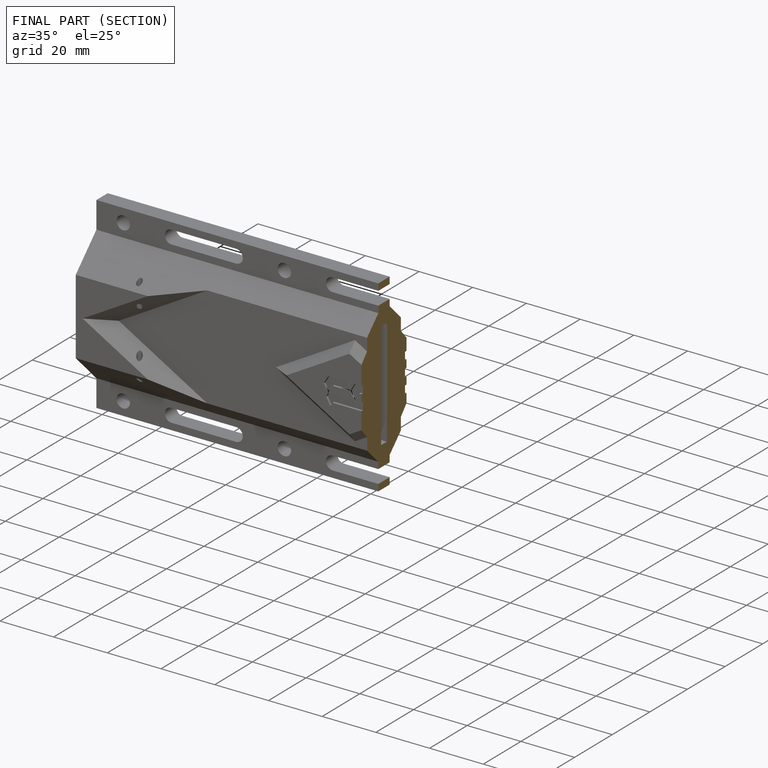
[diagram: finished part — half-section view (interior)]
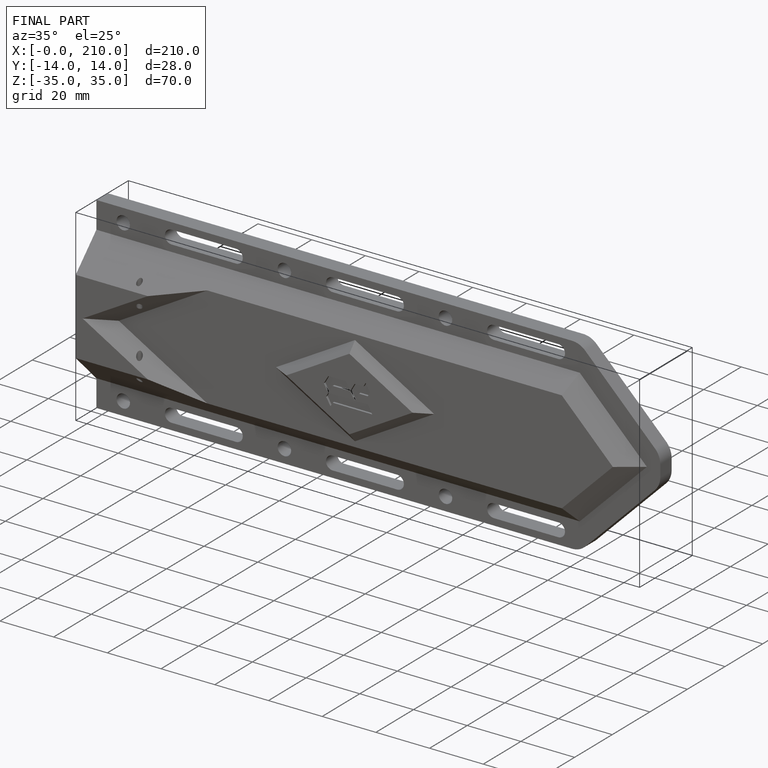
[diagram: finished part — iso view with bounding-box wireframe]
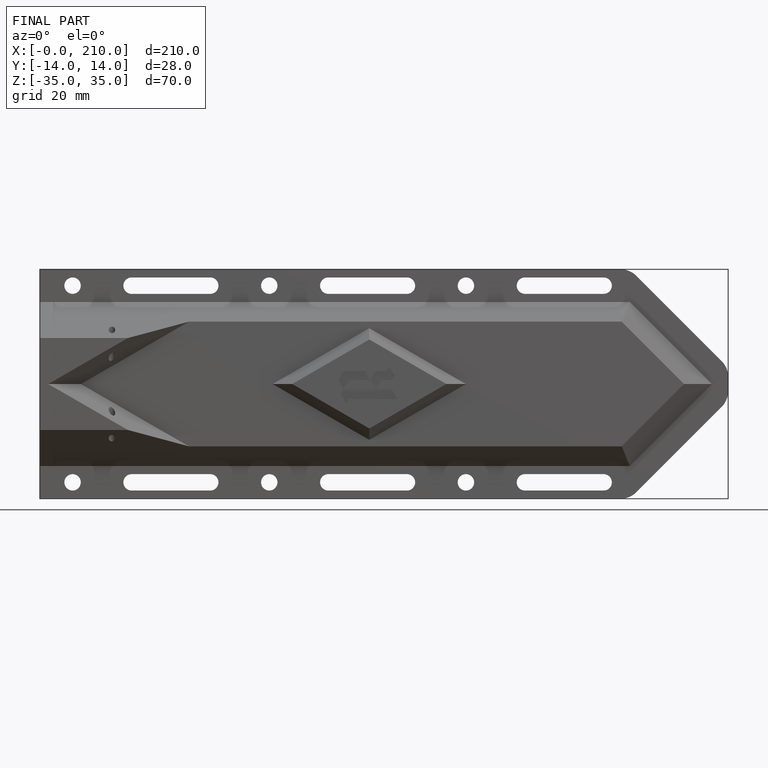
[diagram: finished part — front view with bounding-box wireframe]
